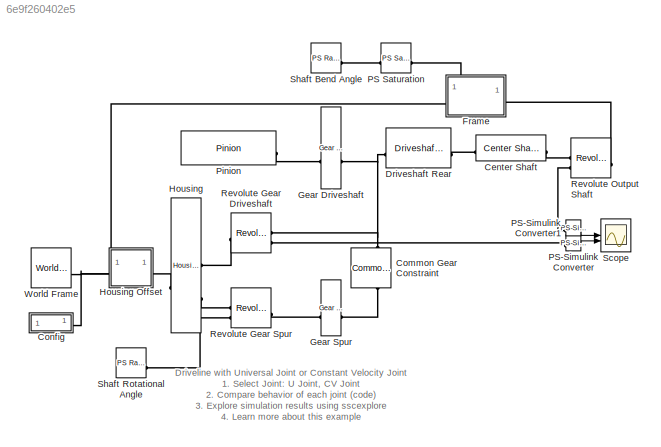
MODEL slx_6e9f260402e5
KIND model
CONFIG AbsTol = 1e-3
CONFIG EnableMultiTasking = on
CONFIG FixedStep = auto
CONFIG MaxStep = auto
CONFIG MinStep = auto
CONFIG RelTol = 1e-3
CONFIG SampleTimeConstraint = Unconstrained
CONFIG SolverName = VariableStepAuto
CONFIG StartTime = 0.0
CONFIG StopTime = 20
BLOCK [Reference] Center Shaft  REF=sm_wheel_loader_lib/Wheel Loader Vehicle/Driveline/Driveline/Driveline 3D/Center  (lib defined in slx_2f13f0afc9e9, slx_78fdec152d5c)
Shaft
  SourceBlock = sm_wheel_loader_lib/Wheel Loader Vehicle/Driveline/Driveline/Driveline 3D/Center\nShaft
BLOCK [Reference] Common Gear Constraint  REF=sm_lib/Gears and
Couplings/Gears/Common Gear
Constraint
  NameLocation = right
  SourceBlock = sm_lib/Gears and\nCouplings/Gears/Common Gear\nConstraint
  SourceType = Common Gear\nConstraint
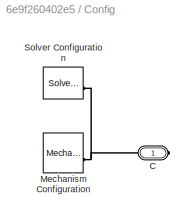
BLOCK [SubSystem] Config
BLOCK [PMIOPort] Config/C
  Side = Right
BLOCK [Reference] Config/Mechanism Configuration  REF=sm_lib/Utilities/Mechanism
Configuration
  SourceBlock = sm_lib/Utilities/Mechanism\nConfiguration
  SourceType = Mechanism\nConfiguration
BLOCK [Reference] Config/Solver Configuration  REF=nesl_utility/Solver
Configuration
  SourceBlock = nesl_utility/Solver\nConfiguration
  SourceType = Solver\nConfiguration
BLOCK [Reference] Driveshaft Rear  REF=sm_wheel_loader_lib/Wheel Loader Vehicle/Driveline/Driveline/Driveline 3D/Driveshaft  (lib defined in slx_2f13f0afc9e9, slx_78fdec152d5c)
Rear
  AttributesFormatString = %<popup_driveJointR>
  SourceBlock = sm_wheel_loader_lib/Wheel Loader Vehicle/Driveline/Driveline/Driveline 3D/Driveshaft\nRear
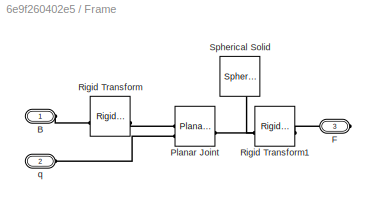
BLOCK [SubSystem] Frame
  PortSchema = {"entries":[{"content":{"sides":[{"content":{"connectorIds":["LConn1"]},"type":"ConnectorPlacement.EquallySpacedRectSide","uuid":"e6cbbeaa-eea4-475d-99a8-9813de6a09fd"},{"content":{"connectorIds":["RConn1"],"side":"RIGHT"},"type":"ConnectorPlacement.EquallySpacedRectSide","uuid":"b42ffd92-551a-432a-a88e-4fe80a794cd4"},{"content":{"connectorIds":["LConn2"],"side":"TOP"},"type":"ConnectorPlacement.E...<+253ch>
BLOCK [PMIOPort] Frame/B
  Side = Left
BLOCK [PMIOPort] Frame/F
  Port = 3
  Side = Right
BLOCK [Reference] Frame/Planar Joint  REF=sm_lib/Joints/Planar Joint
  SourceBlock = sm_lib/Joints/Planar Joint
  SourceType = Planar Joint
BLOCK [Reference] Frame/Rigid Transform  REF=sm_lib/Frames and
Transforms/Rigid
Transform
  SourceBlock = sm_lib/Frames and\nTransforms/Rigid\nTransform
  SourceType = Rigid\nTransform
BLOCK [Reference] Frame/Rigid Transform1  REF=sm_lib/Frames and
Transforms/Rigid
Transform
  SourceBlock = sm_lib/Frames and\nTransforms/Rigid\nTransform
  SourceType = Rigid\nTransform
BLOCK [Reference] Frame/Spherical Solid  REF=sm_lib/Body Elements/Spherical Solid
  NameLocation = left
  SourceBlock = sm_lib/Body Elements/Spherical Solid
  SourceType = Spherical Solid
BLOCK [PMIOPort] Frame/q
  Port = 2
  Side = Left
BLOCK [Reference] Gear Driveshaft  REF=sm_wheel_loader_lib/Wheel Loader Vehicle/Driveline/Driveline/Driveline 3D/Gear  (lib defined in slx_2f13f0afc9e9, slx_78fdec152d5c)
Driveshaft
  SourceBlock = sm_wheel_loader_lib/Wheel Loader Vehicle/Driveline/Driveline/Driveline 3D/Gear\nDriveshaft
  Tag = 431AF5D6-54DA-7142-9431-C4596B630D74
BLOCK [Reference] Gear Spur  REF=sm_wheel_loader_lib/Wheel Loader Vehicle/Driveline/Driveline/Driveline 3D/Gear Spur  (lib defined in slx_2f13f0afc9e9, slx_78fdec152d5c)
  SourceBlock = sm_wheel_loader_lib/Wheel Loader Vehicle/Driveline/Driveline/Driveline 3D/Gear Spur
  Tag = 6EB64544-2A1C-0847-BADC-74C9179BE488
BLOCK [Reference] Housing  REF=sm_wheel_loader_lib/Wheel Loader Vehicle/Driveline/Driveline/Driveline 3D/Housing  (lib defined in slx_2f13f0afc9e9, slx_78fdec152d5c)
  SourceBlock = sm_wheel_loader_lib/Wheel Loader Vehicle/Driveline/Driveline/Driveline 3D/Housing
  Tag = FD1DF3FF-DA5A-0743-8F9C-61712535B657
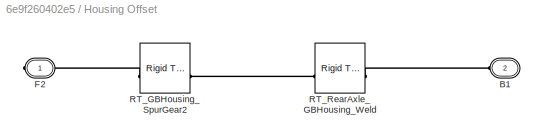
BLOCK [SubSystem] Housing Offset
BLOCK [PMIOPort] Housing Offset/B1
  Port = 2
  Side = Left
BLOCK [PMIOPort] Housing Offset/F2
  Side = Right
BLOCK [Reference] Housing Offset/RT_GBHousing_SpurGear2  REF=sm_lib/Frames and
Transforms/Rigid
Transform
  NameLocation = top
  SourceBlock = sm_lib/Frames and\nTransforms/Rigid\nTransform
  SourceType = Rigid\nTransform
BLOCK [Reference] Housing Offset/RT_RearAxle_GBHousing_Weld  REF=sm_lib/Frames and
Transforms/Rigid
Transform
  SourceBlock = sm_lib/Frames and\nTransforms/Rigid\nTransform
  SourceType = Rigid\nTransform
BLOCK [Reference] PS Saturation  REF=fl_lib/Physical Signals/Nonlinear Operators/PS Saturation
  SourceBlock = fl_lib/Physical Signals/Nonlinear Operators/PS Saturation
  SourceType = PS Saturation
BLOCK [Reference] PS-Simulink Converter  REF=nesl_utility/PS-Simulink
Converter
  SourceBlock = nesl_utility/PS-Simulink\nConverter
  SourceType = PS-Simulink\nConverter
BLOCK [Reference] PS-Simulink Converter1  REF=nesl_utility/PS-Simulink
Converter
  SourceBlock = nesl_utility/PS-Simulink\nConverter
  SourceType = PS-Simulink\nConverter
BLOCK [Reference] Pinion  REF=sm_wheel_loader_lib/Wheel Loader Vehicle/Driveline/Driveline/Driveline 3D/Pinion  (lib defined in slx_2f13f0afc9e9, slx_78fdec152d5c)
  SourceBlock = sm_wheel_loader_lib/Wheel Loader Vehicle/Driveline/Driveline/Driveline 3D/Pinion
  Tag = 8E104B94-12D7-814C-ADF4-87AC864C83F8
BLOCK [Reference] Revolute Gear Driveshaft  REF=sm_lib/Joints/Revolute Joint
  SourceBlock = sm_lib/Joints/Revolute Joint
  SourceType = Revolute Joint
BLOCK [Reference] Revolute Gear Spur  REF=sm_lib/Joints/Revolute Joint
  SourceBlock = sm_lib/Joints/Revolute Joint
  SourceType = Revolute Joint
BLOCK [Reference] Revolute Output Shaft  REF=sm_lib/Joints/Revolute Joint
  SourceBlock = sm_lib/Joints/Revolute Joint
  SourceType = Revolute Joint
BLOCK [Scope] Scope
  Floating = off
  NumInputPorts = 2
  ScopeSpecificationString = Simulink.scopes.TimeScopeBlockCfg('CurrentConfiguration', extmgr.ConfigurationSet(extmgr.Configuration('Core','General UI',true),extmgr.Configuration('Core','Source UI',true),extmgr.Configuration('Sources','WiredSimulink',true),extmgr.Configuration('Visuals','Time Domain',true,'SerializedDisplays',{struct('MinYLimReal','-0.11127','MaxYLimReal','1.0014','YLabelReal','','MinYLimMag','0.00000','MaxYL...<+1346ch>
BLOCK [Reference] Shaft Bend Angle  REF=fl_lib/Physical Signals/Sources/PS Ramp
  SourceBlock = fl_lib/Physical Signals/Sources/PS Ramp
  SourceType = PS Ramp
BLOCK [Reference] Shaft Rotational Angle  REF=fl_lib/Physical Signals/Sources/PS Ramp
  SourceBlock = fl_lib/Physical Signals/Sources/PS Ramp
  SourceType = PS Ramp
BLOCK [Reference] World Frame  REF=sm_lib/Frames and
Transforms/World Frame
  SourceBlock = sm_lib/Frames and\nTransforms/World Frame
  SourceType = World Frame
ANNOTATION (root): 1. Select Joint: U Joint , CV Joint 2. Compare behavior of each joint ( code ) 3. Explore simulation results using sscexplore 4. Learn more about this example
ANNOTATION (root): Driveline with Universal Joint or Constant Velocity Joint
LINE PS-Simulink Converter1:1 -> Scope:1
LINE PS-Simulink Converter:1 -> Scope:2
PLINE Center Shaft:LConn1 -- Driveshaft Rear:RConn1
PLINE Center Shaft:RConn1 -- Revolute Output Shaft:RConn1
PLINE Common Gear Constraint:LConn1 -- Gear Spur:RConn1
PNET net1: Common Gear Constraint:RConn1 -- Driveshaft Rear:LConn1 -- Gear Driveshaft:LConn1 -- Revolute Gear Driveshaft:RConn1
PNET net2: Config/C:RConn1 -- Config/Mechanism Configuration:RConn1 -- Config/Solver Configuration:RConn1
PNET net3: Config:RConn1 -- Frame:LConn1 -- Housing Offset:RConn1 -- World Frame:RConn1
PLINE Frame/B:RConn1 -- Frame/Rigid Transform:LConn1
PLINE Frame/F:RConn1 -- Frame/Rigid Transform1:LConn1
PLINE Frame/Planar Joint:LConn1 -- Frame/Rigid Transform:RConn1
PLINE Frame/Planar Joint:LConn2 -- Frame/q:RConn1
PNET net4: Frame/Planar Joint:RConn1 -- Frame/Rigid Transform1:RConn1 -- Frame/Spherical Solid:RConn1
PLINE Frame:LConn2 -- PS Saturation:RConn1
PLINE Frame:RConn1 -- Revolute Output Shaft:LConn1
PLINE Gear Driveshaft:RConn1 -- Pinion:RConn1
PLINE Gear Spur:LConn1 -- Revolute Gear Spur:RConn1
PLINE Housing Offset/B1:RConn1 -- Housing Offset/RT_RearAxle_GBHousing_Weld:RConn1
PLINE Housing Offset/F2:RConn1 -- Housing Offset/RT_GBHousing_SpurGear2:RConn1
PLINE Housing Offset/RT_GBHousing_SpurGear2:LConn1 -- Housing Offset/RT_RearAxle_GBHousing_Weld:LConn1
PLINE Housing Offset:LConn1 -- Housing:LConn1
PLINE Housing:RConn1 -- Revolute Gear Driveshaft:LConn1
PLINE Housing:RConn2 -- Revolute Gear Spur:LConn1
PLINE PS Saturation:LConn1 -- Shaft Bend Angle:RConn1
PLINE PS-Simulink Converter1:LConn1 -- Revolute Output Shaft:RConn2
PLINE PS-Simulink Converter:LConn1 -- Revolute Gear Driveshaft:RConn2
PLINE Revolute Gear Spur:LConn2 -- Shaft Rotational Angle:RConn1
note: PNET lines group multi-terminal physical nets as a canonical sorted terminal list (undirected conserving connections); 2-terminal nets keep the pairwise PLINE form
